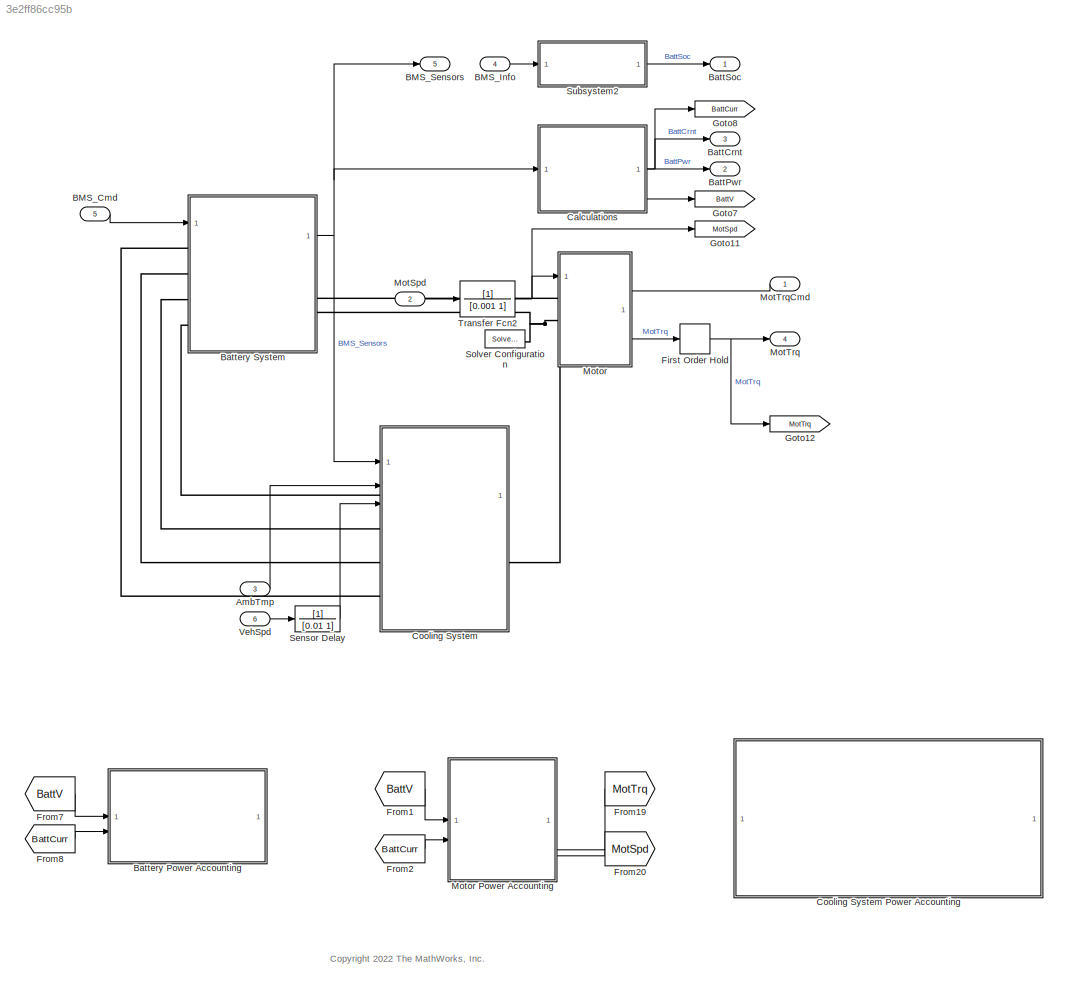
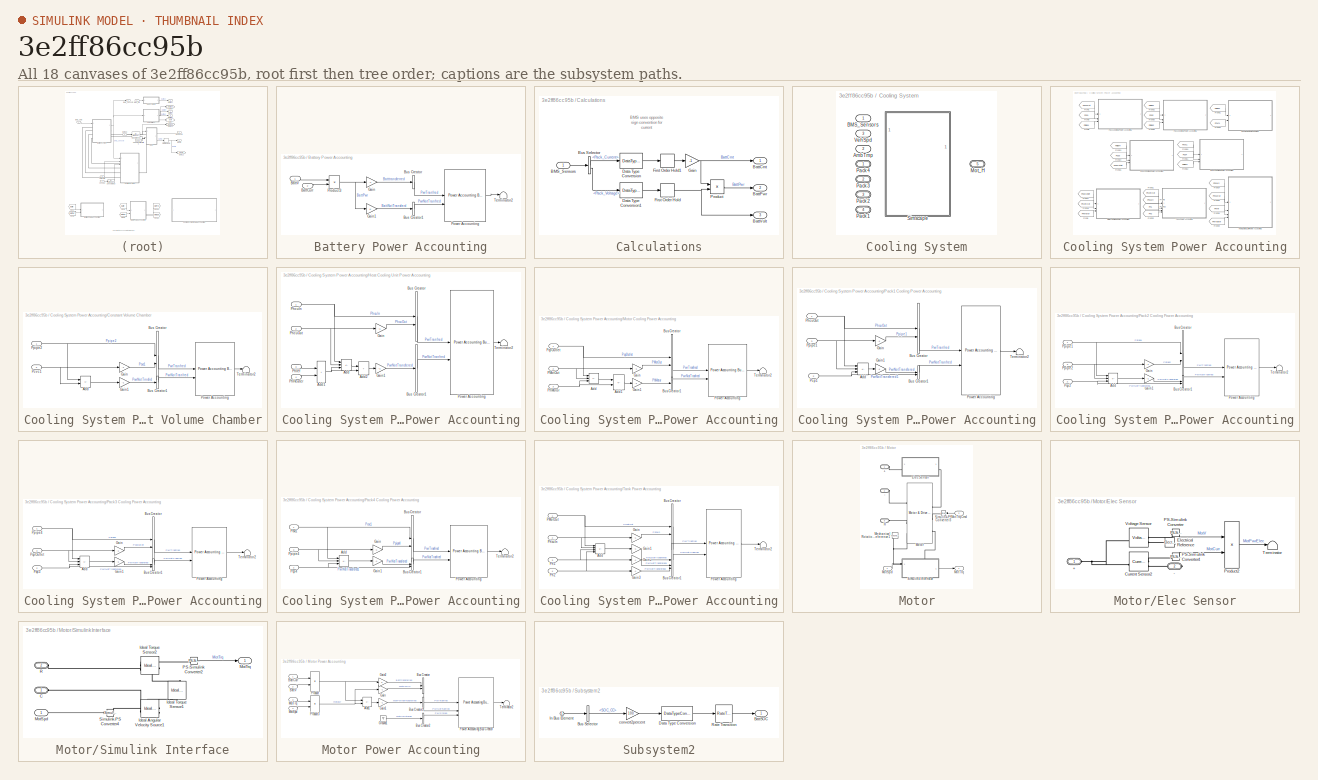
[diagram: thumbnail index - all 18 canvases of the model, root first then tree order]
MODEL slx_3e2ff86cc95b
KIND model
CONFIG AbsTol = auto
CONFIG EnableMultiTasking = off
CONFIG FixedStep = auto
CONFIG MaxStep = auto
CONFIG MinStep = auto
CONFIG RelTol = 1e-3
CONFIG SampleTimeConstraint = Unconstrained
CONFIG SolverName = VariableStepAuto
CONFIG StartTime = 0.0
CONFIG StopTime = 10.0
WORKSPACE source: mxarray member
WORKSPACE Active_Scenario_Index = 1
WORKSPACE BattCurrent = [0 0.1 0.2 0.3 0.4 0.5 0.6 0.7 0.8 0.9 1 1.1 ... (49482 elements, 24741x2)]
WORKSPACE BattSocInit = 0.75
WORKSPACE BattTempInit = 25
WORKSPACE Battery: object (value not decoded)
WORKSPACE CellType = 1
WORKSPACE EV_current = 200
WORKSPACE EV_motion = [20 4 0.8]
WORKSPACE EV_sf = 2000
WORKSPACE Fs = 0
WORKSPACE Fv = 0.0025
WORKSPACE Jcomp = 0.0227
WORKSPACE Ki = 251.3274
WORKSPACE Kisa = 346.6583
WORKSPACE Kp_d = 0.47149
WORKSPACE Kp_q = 0.52125
WORKSPACE Ksa = 85.4316
WORKSPACE Ksf = 1996.2651
WORKSPACE Ld = 0.0003752
WORKSPACE Ldq = [0.0003752 0.0004148]
WORKSPACE Lq = 0.0004148
WORKSPACE Mechanical = [0.0227 0.0025 0]
WORKSPACE Np_Module = 31
WORKSPACE Ns_Module = 24
WORKSPACE NumModules = 4
WORKSPACE OverCellVoltageLimit = 4.19999980927
WORKSPACE P = 4
WORKSPACE PolePairs = 4
WORKSPACE R_bleed = 20
WORKSPACE Rs = 0.2
WORKSPACE T_eff_bp = [0 32.1428571429 64.2857142857 96.4285714286 128.571428571 160.714285714 192.857142857 225 257.142857143 289.285714286 321.428571429 353.571428571 ... (15 elements, 1x15)]
WORKSPACE T_env = 30
WORKSPACE T_init = 303.15
WORKSPACE T_max = 450
WORKSPACE T_mtpa = [0 13.3131834767 26.6278836885 39.9456159322 53.2678926341 66.5962219318 79.9321062746 93.277041051 106.632513247 120.000000141]
WORKSPACE T_set = 20.5
WORKSPACE Tc = 0.02
WORKSPACE TempInit = 288.15
WORKSPACE TestCase = 1
WORKSPACE UnderCellVoltageLimit = 2.5
WORKSPACE ba = 3.4029
WORKSPACE cell_area = 0.101908
WORKSPACE efficiency_table = [86.7 86.7 86.7 86.7 86.7 86.7 86.7 86.7 86.7 86.7 86.7 86.7 ... (180 elements, 12x15)]
WORKSPACE h_conv = 5
WORKSPACE id_mtpa = [0 -0.114523352646 -0.457989076459 -1.03008464374 -1.83029075221 -2.85788367342 -4.11193850568 -5.59133329791 -7.29475400168 -9.22070020138]
WORKSPACE idq0 = [0 0]
WORKSPACE idq_limits = [-9.220699542 166.993501392 167.247872355]
WORKSPACE iq_mtpa = [0 18.5827440345 37.1633719111 55.7397734896 74.3098506185 92.871523015 111.422734008 129.961456105 148.485696337 166.993501356]
WORKSPACE lambda_pm = 0.1194
WORKSPACE losses_table = [0 0 0 0 0 0 0 0 0 0 0 0 ... (180 elements, 12x15)]
WORKSPACE mdot_rev = 0.01
WORKSPACE mechanical = [0.0227 0.0025 0]
WORKSPACE omega_init = 0
WORKSPACE pipe: object (value not decoded)
WORKSPACE power_max = 211000
WORKSPACE pump: object (value not decoded)
WORKSPACE radiator: object (value not decoded)
WORKSPACE t_sim = 2474
WORKSPACE tank: object (value not decoded)
WORKSPACE theta_init = 0
WORKSPACE torque_max = 450
WORKSPACE ts = 0.1
WORKSPACE valve: object (value not decoded)
WORKSPACE w_eff_bp = [0 1600 3200 4477.56 4800 6400 8000 9600 11200 12800 14400 16000]
BLOCK [Inport] AmbTmp
  Port = 3
BLOCK [Inport] BMS_Cmd
  OutDataTypeStr = Bus: BMS_Cmd
  Port = 5
BLOCK [Inport] BMS_Info
  OutDataTypeStr = Bus: BMS_Info
  Port = 4
BLOCK [Outport] BMS_Sensors
  BusOutputAsStruct = on
  OutDataTypeStr = Bus: Sensors
  Port = 5
  VectorParamsAs1DForOutWhenUnconnected = off
BLOCK [Outport] BattCrnt
  Port = 3
  VectorParamsAs1DForOutWhenUnconnected = off
BLOCK [Outport] BattPwr
  Port = 2
  VectorParamsAs1DForOutWhenUnconnected = off
BLOCK [Outport] BattSoc
  VectorParamsAs1DForOutWhenUnconnected = off
BLOCK [SubSystem] Battery Power Accounting
BLOCK [Inport] Battery Power Accounting/BattCurr
  Port = 2
BLOCK [Inport] Battery Power Accounting/BattV
BLOCK [BusCreator] Battery Power Accounting/Bus Creator
  DisplayOption = bar
  InheritFromInputs = on
  Inputs = 1
BLOCK [BusCreator] Battery Power Accounting/Bus Creator1
  DisplayOption = bar
  InheritFromInputs = on
  Inputs = 1
BLOCK [Gain] Battery Power Accounting/Gain
  Gain = -1
BLOCK [Gain] Battery Power Accounting/Gain1
BLOCK [Reference] Battery Power Accounting/Power Accounting  REF=autolibpowerinfoutils/Power Accounting Bus Creator
  SourceBlock = autolibpowerinfoutils/Power Accounting Bus Creator
  SourceType = Power Accounting Bus Creator
BLOCK [Product] Battery Power Accounting/Product3
BLOCK [Terminator] Battery Power Accounting/Terminator2
BLOCK [SubSystem] Battery System
  ReferencedSubsystem = Battery_Model
BLOCK [SubSystem] Calculations
BLOCK [Inport] Calculations/BMS_Sensors
BLOCK [Outport] Calculations/BattCrnt
BLOCK [Outport] Calculations/BattPwr
  Port = 2
BLOCK [Outport] Calculations/BattVolt
  Port = 3
BLOCK [BusSelector] Calculations/Bus Selector
  OutputSignals = Pack_Current,Pack_Voltage
BLOCK [DataTypeConversion] Calculations/Data Type Conversion
  OutDataTypeStr = double
  RndMeth = Floor
  SaturateOnIntegerOverflow = off
BLOCK [DataTypeConversion] Calculations/Data Type Conversion1
  OutDataTypeStr = double
  RndMeth = Floor
  SaturateOnIntegerOverflow = off
BLOCK [FirstOrderHold] Calculations/First Order Hold
  AllowContinuousInput = on
  ErrorTolerance = inf
BLOCK [FirstOrderHold] Calculations/First Order Hold1
  AllowContinuousInput = on
  ErrorTolerance = inf
BLOCK [Gain] Calculations/Gain
  Gain = -1
BLOCK [Product] Calculations/Product
BLOCK [SubSystem] Cooling System
  LabelModeActiveChoice = 1
  PortSchema = {"entries":[{"content":{"sides":[{"content":{"connectorIds":["In1","LConn1","LConn2","LConn3","LConn4","In2","In3"]},"type":"ConnectorPlacement.EquallySpacedRectSide","uuid":"c167541e-e4b9-49e2-9aa7-1fe3e992d52d"},{"content":{"connectorIds":["RConn1"],"side":"RIGHT"},"type":"ConnectorPlacement.EquallySpacedRectSide","uuid":"bae8285f-2b84-4cb8-84af-359175be4c5c"},{"content":{"connectorIds":[],"side...<+290ch>
  Variant = on
  VariantControl = Choice
  VariantControlMode = label
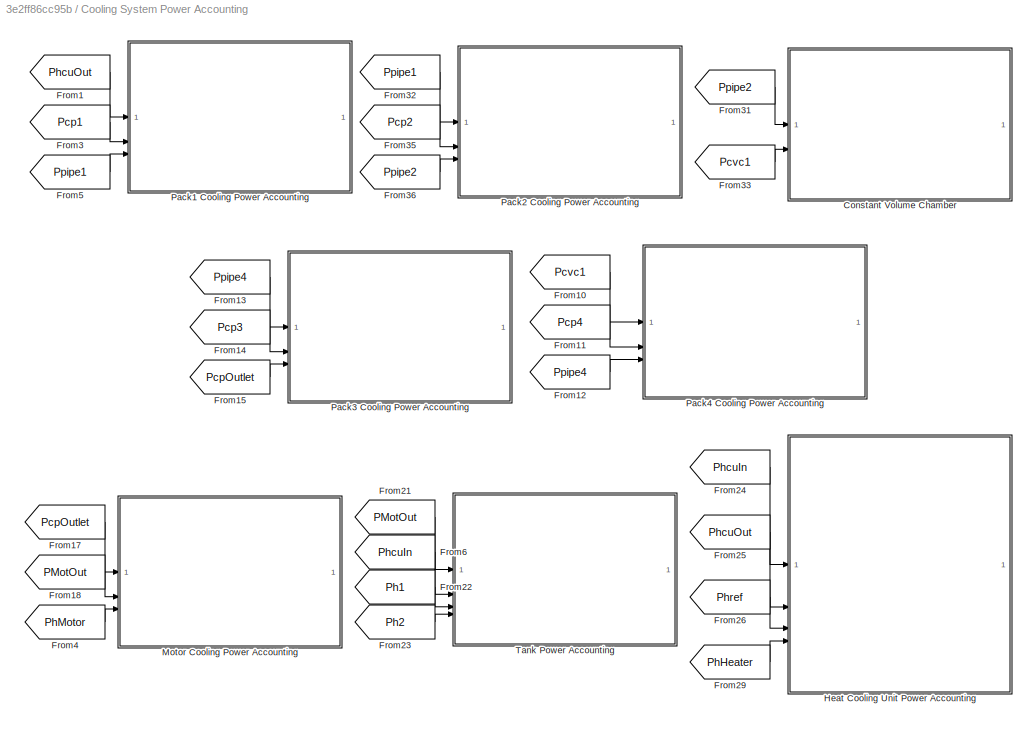
BLOCK [SubSystem] Cooling System Power Accounting
BLOCK [SubSystem] Cooling System Power Accounting/Constant Volume Chamber
BLOCK [Reference] Cooling System Power Accounting/Constant Volume Chamber/ Power Accounting  REF=autolibpowerinfoutils/Power Accounting Bus Creator
  SourceBlock = autolibpowerinfoutils/Power Accounting Bus Creator
  SourceType = Power Accounting Bus Creator
BLOCK [Sum] Cooling System Power Accounting/Constant Volume Chamber/Add
  IconShape = rectangular
  Inputs = +-
BLOCK [BusCreator] Cooling System Power Accounting/Constant Volume Chamber/Bus Creator
  DisplayOption = bar
  InheritFromInputs = on
  Inputs = 2
BLOCK [BusCreator] Cooling System Power Accounting/Constant Volume Chamber/Bus Creator1
  DisplayOption = bar
  InheritFromInputs = on
  Inputs = 1
BLOCK [Gain] Cooling System Power Accounting/Constant Volume Chamber/Gain
  Gain = -1
BLOCK [Gain] Cooling System Power Accounting/Constant Volume Chamber/Gain1
  Gain = -1
BLOCK [Inport] Cooling System Power Accounting/Constant Volume Chamber/Pcvc1
  Port = 2
BLOCK [Inport] Cooling System Power Accounting/Constant Volume Chamber/Ppipe2
BLOCK [Terminator] Cooling System Power Accounting/Constant Volume Chamber/Terminator2
BLOCK [From] Cooling System Power Accounting/From1
  GotoTag = PhcuOut
  TagVisibility = global
BLOCK [From] Cooling System Power Accounting/From10
  GotoTag = Pcvc1
  TagVisibility = global
BLOCK [From] Cooling System Power Accounting/From11
  GotoTag = Pcp4
  TagVisibility = global
BLOCK [From] Cooling System Power Accounting/From12
  GotoTag = Ppipe4
  TagVisibility = global
BLOCK [From] Cooling System Power Accounting/From13
  GotoTag = Ppipe4
  TagVisibility = global
BLOCK [From] Cooling System Power Accounting/From14
  GotoTag = Pcp3
  TagVisibility = global
BLOCK [From] Cooling System Power Accounting/From15
  GotoTag = PcpOutlet
  TagVisibility = global
BLOCK [From] Cooling System Power Accounting/From17
  GotoTag = PcpOutlet
  TagVisibility = global
BLOCK [From] Cooling System Power Accounting/From18
  GotoTag = PMotOut
  TagVisibility = global
BLOCK [From] Cooling System Power Accounting/From21
  GotoTag = PMotOut
  TagVisibility = global
BLOCK [From] Cooling System Power Accounting/From22
  GotoTag = Ph1
  TagVisibility = global
BLOCK [From] Cooling System Power Accounting/From23
  GotoTag = Ph2
  TagVisibility = global
BLOCK [From] Cooling System Power Accounting/From24
  GotoTag = PhcuIn
  TagVisibility = global
BLOCK [From] Cooling System Power Accounting/From25
  GotoTag = PhcuOut
  TagVisibility = global
BLOCK [From] Cooling System Power Accounting/From26
  GotoTag = Phref
  TagVisibility = global
BLOCK [From] Cooling System Power Accounting/From29
  GotoTag = PhHeater
  TagVisibility = global
BLOCK [From] Cooling System Power Accounting/From3
  GotoTag = Pcp1
  TagVisibility = global
BLOCK [From] Cooling System Power Accounting/From31
  GotoTag = Ppipe2
  TagVisibility = global
BLOCK [From] Cooling System Power Accounting/From32
  GotoTag = Ppipe1
  TagVisibility = global
BLOCK [From] Cooling System Power Accounting/From33
  GotoTag = Pcvc1
  TagVisibility = global
BLOCK [From] Cooling System Power Accounting/From35
  GotoTag = Pcp2
  TagVisibility = global
BLOCK [From] Cooling System Power Accounting/From36
  GotoTag = Ppipe2
  TagVisibility = global
BLOCK [From] Cooling System Power Accounting/From4
  GotoTag = PhMotor
  TagVisibility = global
BLOCK [From] Cooling System Power Accounting/From5
  GotoTag = Ppipe1
  TagVisibility = global
BLOCK [From] Cooling System Power Accounting/From6
  GotoTag = PhcuIn
  TagVisibility = global
BLOCK [SubSystem] Cooling System Power Accounting/Heat Cooling Unit Power Accounting
BLOCK [Sum] Cooling System Power Accounting/Heat Cooling Unit Power Accounting/Add
  IconShape = rectangular
  Inputs = +--
BLOCK [Sum] Cooling System Power Accounting/Heat Cooling Unit Power Accounting/Add1
  IconShape = rectangular
BLOCK [Sum] Cooling System Power Accounting/Heat Cooling Unit Power Accounting/Add2
  IconShape = rectangular
BLOCK [BusCreator] Cooling System Power Accounting/Heat Cooling Unit Power Accounting/Bus Creator
  DisplayOption = bar
  InheritFromInputs = on
  Inputs = 2
BLOCK [BusCreator] Cooling System Power Accounting/Heat Cooling Unit Power Accounting/Bus Creator1
  DisplayOption = bar
  InheritFromInputs = on
  Inputs = 1
BLOCK [Gain] Cooling System Power Accounting/Heat Cooling Unit Power Accounting/Gain
  Gain = -1
BLOCK [Gain] Cooling System Power Accounting/Heat Cooling Unit Power Accounting/Gain1
  Gain = -1
BLOCK [Inport] Cooling System Power Accounting/Heat Cooling Unit Power Accounting/PhHeater
  Port = 4
BLOCK [Inport] Cooling System Power Accounting/Heat Cooling Unit Power Accounting/PhcuIn
BLOCK [Inport] Cooling System Power Accounting/Heat Cooling Unit Power Accounting/PhcuOut
  Port = 2
BLOCK [Inport] Cooling System Power Accounting/Heat Cooling Unit Power Accounting/Phref
  Port = 3
BLOCK [Reference] Cooling System Power Accounting/Heat Cooling Unit Power Accounting/Power Accounting  REF=autolibpowerinfoutils/Power Accounting Bus Creator
  SourceBlock = autolibpowerinfoutils/Power Accounting Bus Creator
  SourceType = Power Accounting Bus Creator
BLOCK [Terminator] Cooling System Power Accounting/Heat Cooling Unit Power Accounting/Terminator2
BLOCK [SubSystem] Cooling System Power Accounting/Motor Cooling Power Accounting
BLOCK [Sum] Cooling System Power Accounting/Motor Cooling Power Accounting/Add
  IconShape = rectangular
  Inputs = +-+
BLOCK [Sum] Cooling System Power Accounting/Motor Cooling Power Accounting/Add1
  IconShape = rectangular
  Inputs = +-
BLOCK [BusCreator] Cooling System Power Accounting/Motor Cooling Power Accounting/Bus Creator
  DisplayOption = bar
  InheritFromInputs = on
  Inputs = 2
BLOCK [BusCreator] Cooling System Power Accounting/Motor Cooling Power Accounting/Bus Creator1
  DisplayOption = bar
  InheritFromInputs = on
  Inputs = 1
BLOCK [Gain] Cooling System Power Accounting/Motor Cooling Power Accounting/Gain
  Gain = -1
BLOCK [Gain] Cooling System Power Accounting/Motor Cooling Power Accounting/Gain1
  Gain = -1
BLOCK [Inport] Cooling System Power Accounting/Motor Cooling Power Accounting/PMotOut
  Port = 2
BLOCK [Inport] Cooling System Power Accounting/Motor Cooling Power Accounting/PcpOutlet
BLOCK [Inport] Cooling System Power Accounting/Motor Cooling Power Accounting/PhMotor
  Port = 3
BLOCK [Reference] Cooling System Power Accounting/Motor Cooling Power Accounting/Power Accounting  REF=autolibpowerinfoutils/Power Accounting Bus Creator
  SourceBlock = autolibpowerinfoutils/Power Accounting Bus Creator
  SourceType = Power Accounting Bus Creator
BLOCK [Terminator] Cooling System Power Accounting/Motor Cooling Power Accounting/Terminator2
BLOCK [SubSystem] Cooling System Power Accounting/Pack1 Cooling Power Accounting
BLOCK [Sum] Cooling System Power Accounting/Pack1 Cooling Power Accounting/Add
  IconShape = rectangular
  Inputs = +-+
BLOCK [BusCreator] Cooling System Power Accounting/Pack1 Cooling Power Accounting/Bus Creator
  DisplayOption = bar
  InheritFromInputs = on
  Inputs = 2
BLOCK [BusCreator] Cooling System Power Accounting/Pack1 Cooling Power Accounting/Bus Creator1
  DisplayOption = bar
  InheritFromInputs = on
  Inputs = 2
BLOCK [Gain] Cooling System Power Accounting/Pack1 Cooling Power Accounting/Gain
  Gain = -1
BLOCK [Gain] Cooling System Power Accounting/Pack1 Cooling Power Accounting/Gain1
  Gain = -1
BLOCK [Inport] Cooling System Power Accounting/Pack1 Cooling Power Accounting/Pcp1
  Port = 2
BLOCK [Inport] Cooling System Power Accounting/Pack1 Cooling Power Accounting/PhcuOut
BLOCK [Reference] Cooling System Power Accounting/Pack1 Cooling Power Accounting/Power Accounting  REF=autolibpowerinfoutils/Power Accounting Bus Creator
  SourceBlock = autolibpowerinfoutils/Power Accounting Bus Creator
  SourceType = Power Accounting Bus Creator
BLOCK [Inport] Cooling System Power Accounting/Pack1 Cooling Power Accounting/Ppipe1
  Port = 3
BLOCK [Terminator] Cooling System Power Accounting/Pack1 Cooling Power Accounting/Terminator2
BLOCK [SubSystem] Cooling System Power Accounting/Pack2 Cooling Power Accounting
BLOCK [Sum] Cooling System Power Accounting/Pack2 Cooling Power Accounting/Add
  IconShape = rectangular
  Inputs = +-+
BLOCK [BusCreator] Cooling System Power Accounting/Pack2 Cooling Power Accounting/Bus Creator
  DisplayOption = bar
  InheritFromInputs = on
  Inputs = 2
BLOCK [BusCreator] Cooling System Power Accounting/Pack2 Cooling Power Accounting/Bus Creator1
  DisplayOption = bar
  InheritFromInputs = on
  Inputs = 2
BLOCK [Gain] Cooling System Power Accounting/Pack2 Cooling Power Accounting/Gain
  Gain = -1
BLOCK [Gain] Cooling System Power Accounting/Pack2 Cooling Power Accounting/Gain1
  Gain = -1
BLOCK [Inport] Cooling System Power Accounting/Pack2 Cooling Power Accounting/Pcp2
  Port = 2
BLOCK [Reference] Cooling System Power Accounting/Pack2 Cooling Power Accounting/Power Accounting  REF=autolibpowerinfoutils/Power Accounting Bus Creator
  SourceBlock = autolibpowerinfoutils/Power Accounting Bus Creator
  SourceType = Power Accounting Bus Creator
BLOCK [Inport] Cooling System Power Accounting/Pack2 Cooling Power Accounting/Ppipe1
BLOCK [Inport] Cooling System Power Accounting/Pack2 Cooling Power Accounting/Ppipe2
  Port = 3
BLOCK [Terminator] Cooling System Power Accounting/Pack2 Cooling Power Accounting/Terminator2
BLOCK [SubSystem] Cooling System Power Accounting/Pack3 Cooling Power Accounting
BLOCK [Sum] Cooling System Power Accounting/Pack3 Cooling Power Accounting/Add
  IconShape = rectangular
  Inputs = +-+
BLOCK [BusCreator] Cooling System Power Accounting/Pack3 Cooling Power Accounting/Bus Creator
  DisplayOption = bar
  InheritFromInputs = on
  Inputs = 2
BLOCK [BusCreator] Cooling System Power Accounting/Pack3 Cooling Power Accounting/Bus Creator1
  DisplayOption = bar
  InheritFromInputs = on
  Inputs = 2
BLOCK [Gain] Cooling System Power Accounting/Pack3 Cooling Power Accounting/Gain
  Gain = -1
BLOCK [Gain] Cooling System Power Accounting/Pack3 Cooling Power Accounting/Gain1
  Gain = -1
BLOCK [Inport] Cooling System Power Accounting/Pack3 Cooling Power Accounting/Pcp3
  Port = 2
BLOCK [Inport] Cooling System Power Accounting/Pack3 Cooling Power Accounting/PcpOutlet
  Port = 3
BLOCK [Reference] Cooling System Power Accounting/Pack3 Cooling Power Accounting/Power Accounting  REF=autolibpowerinfoutils/Power Accounting Bus Creator
  SourceBlock = autolibpowerinfoutils/Power Accounting Bus Creator
  SourceType = Power Accounting Bus Creator
BLOCK [Inport] Cooling System Power Accounting/Pack3 Cooling Power Accounting/Ppipe4
BLOCK [Terminator] Cooling System Power Accounting/Pack3 Cooling Power Accounting/Terminator2
BLOCK [SubSystem] Cooling System Power Accounting/Pack4 Cooling Power Accounting
BLOCK [Sum] Cooling System Power Accounting/Pack4 Cooling Power Accounting/Add
  IconShape = rectangular
  Inputs = +-+
BLOCK [BusCreator] Cooling System Power Accounting/Pack4 Cooling Power Accounting/Bus Creator
  DisplayOption = bar
  InheritFromInputs = on
  Inputs = 2
BLOCK [BusCreator] Cooling System Power Accounting/Pack4 Cooling Power Accounting/Bus Creator1
  DisplayOption = bar
  InheritFromInputs = on
  Inputs = 2
BLOCK [Gain] Cooling System Power Accounting/Pack4 Cooling Power Accounting/Gain
  Gain = -1
BLOCK [Gain] Cooling System Power Accounting/Pack4 Cooling Power Accounting/Gain1
  Gain = -1
BLOCK [Inport] Cooling System Power Accounting/Pack4 Cooling Power Accounting/Pcp4
  Port = 2
BLOCK [Inport] Cooling System Power Accounting/Pack4 Cooling Power Accounting/Pcvc1
BLOCK [Reference] Cooling System Power Accounting/Pack4 Cooling Power Accounting/Power Accounting  REF=autolibpowerinfoutils/Power Accounting Bus Creator
  SourceBlock = autolibpowerinfoutils/Power Accounting Bus Creator
  SourceType = Power Accounting Bus Creator
BLOCK [Inport] Cooling System Power Accounting/Pack4 Cooling Power Accounting/Ppipe4
  Port = 3
BLOCK [Terminator] Cooling System Power Accounting/Pack4 Cooling Power Accounting/Terminator2
BLOCK [SubSystem] Cooling System Power Accounting/Tank Power Accounting
BLOCK [Sum] Cooling System Power Accounting/Tank Power Accounting/Add
  IconShape = rectangular
  Inputs = +---
BLOCK [BusCreator] Cooling System Power Accounting/Tank Power Accounting/Bus Creator
  DisplayOption = bar
  InheritFromInputs = on
  Inputs = 2
BLOCK [BusCreator] Cooling System Power Accounting/Tank Power Accounting/Bus Creator1
  DisplayOption = bar
  InheritFromInputs = on
  Inputs = 3
BLOCK [Gain] Cooling System Power Accounting/Tank Power Accounting/Gain
  Gain = -1
BLOCK [Gain] Cooling System Power Accounting/Tank Power Accounting/Gain1
  Gain = -1
BLOCK [Gain] Cooling System Power Accounting/Tank Power Accounting/Gain2
  Gain = -1
BLOCK [Gain] Cooling System Power Accounting/Tank Power Accounting/Gain3
  Gain = -1
BLOCK [Inport] Cooling System Power Accounting/Tank Power Accounting/PMotOut
BLOCK [Inport] Cooling System Power Accounting/Tank Power Accounting/Ph1
  Port = 3
BLOCK [Inport] Cooling System Power Accounting/Tank Power Accounting/Ph2
  Port = 4
BLOCK [Inport] Cooling System Power Accounting/Tank Power Accounting/PhcuIn
  Port = 2
BLOCK [Reference] Cooling System Power Accounting/Tank Power Accounting/Power Accounting  REF=autolibpowerinfoutils/Power Accounting Bus Creator
  SourceBlock = autolibpowerinfoutils/Power Accounting Bus Creator
  SourceType = Power Accounting Bus Creator
BLOCK [Terminator] Cooling System Power Accounting/Tank Power Accounting/Terminator2
BLOCK [Inport] Cooling System/AmbTmp
  Port = 2
BLOCK [Inport] Cooling System/BMS_Sensors
BLOCK [PMIOPort] Cooling System/Mot_H
  Port = 5
  Side = Right
BLOCK [PMIOPort] Cooling System/Pack 1
  Port = 4
  Side = Left
BLOCK [PMIOPort] Cooling System/Pack 2
  Port = 3
  Side = Left
BLOCK [PMIOPort] Cooling System/Pack 3
  Port = 2
  Side = Left
BLOCK [PMIOPort] Cooling System/Pack 4
  Side = Left
BLOCK [SubSystem] Cooling System/Simscape 
  PortSchema = {"entries":[{"content":{"sides":[{"content":{"connectorIds":["In1","LConn1","LConn2","LConn3","LConn4","In3","In2"]},"type":"ConnectorPlacement.EquallySpacedRectSide","uuid":"91345e43-9326-4851-ae22-0115818e13bd"},{"content":{"connectorIds":["RConn1"],"side":"RIGHT"},"type":"ConnectorPlacement.EquallySpacedRectSide","uuid":"8fdec940-c4a1-4379-aa74-e54f16fb1812"},{"content":{"side":"TOP"},"type":"C...<+272ch>
  ReferencedSubsystem = sscfluids_ev_battery_cooling_variant
  VariantControl = 1
BLOCK [Inport] Cooling System/VehSpd
  Port = 3
BLOCK [FirstOrderHold] First Order Hold
  AllowContinuousInput = on
  ErrorTolerance = inf
BLOCK [From] From1
  GotoTag = BattV
BLOCK [From] From19
  GotoTag = MotTrq
  NameLocation = top
  TagVisibility = global
BLOCK [From] From2
  GotoTag = BattCurr
BLOCK [From] From20
  GotoTag = MotSpd
  NameLocation = top
  TagVisibility = global
BLOCK [From] From7
  GotoTag = BattV
BLOCK [From] From8
  GotoTag = BattCurr
BLOCK [Goto] Goto11
  GotoTag = MotSpd
  TagVisibility = global
BLOCK [Goto] Goto12
  GotoTag = MotTrq
  TagVisibility = global
BLOCK [Goto] Goto7
  GotoTag = BattV
BLOCK [Goto] Goto8
  GotoTag = BattCurr
BLOCK [Inport] MotSpd
  Port = 2
BLOCK [Outport] MotTrq
  Port = 4
  VectorParamsAs1DForOutWhenUnconnected = off
BLOCK [Inport] MotTrqCmd
  NameLocation = right
BLOCK [SubSystem] Motor
  PortSchema = {"entries":[{"content":{"sides":[{"content":{"connectorIds":["LConn1","In1","LConn2","LConn3"]},"type":"ConnectorPlacement.EquallySpacedRectSide","uuid":"9597c387-ee3f-4b24-bb5e-e93595cd0799"},{"content":{"connectorIds":["In2","Out1"],"side":"RIGHT"},"type":"ConnectorPlacement.EquallySpacedRectSide","uuid":"f263f5bf-92e3-41e6-b8e0-90892aa1ca09"},{"content":{"connectorIds":[],"side":"TOP"},"type":"...<+273ch>
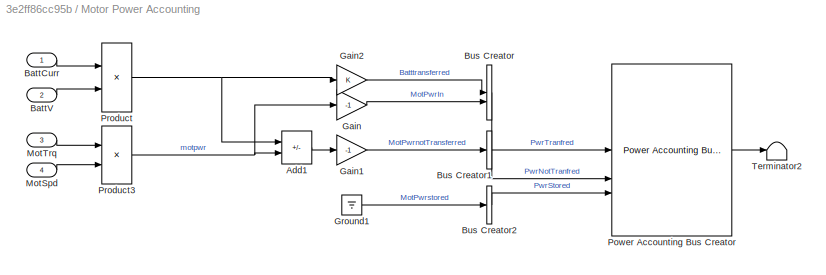
BLOCK [SubSystem] Motor Power Accounting
  PortSchema = {"entries":[{"content":{"sides":[{"content":{"connectorIds":["In1","In2"]},"type":"ConnectorPlacement.EquallySpacedRectSide","uuid":"6ec4812d-f6a8-428e-ab71-0e64a82e557b"},{"content":{"connectorIds":["In3","In4"],"side":"RIGHT"},"type":"ConnectorPlacement.EquallySpacedRectSide","uuid":"a1192fa4-ef5f-453a-86cc-222a9b7953b2"},{"content":{"connectorIds":[],"side":"TOP"},"type":"ConnectorPlacement.Equ...<+251ch>
BLOCK [Sum] Motor Power Accounting/Add1
  IconShape = rectangular
  Inputs = +-
BLOCK [Inport] Motor Power Accounting/BattCurr
BLOCK [Inport] Motor Power Accounting/BattV
  Port = 2
BLOCK [BusCreator] Motor Power Accounting/Bus Creator
  DisplayOption = bar
  InheritFromInputs = on
  Inputs = 2
BLOCK [BusCreator] Motor Power Accounting/Bus Creator1
  DisplayOption = bar
  InheritFromInputs = on
  Inputs = 1
BLOCK [BusCreator] Motor Power Accounting/Bus Creator2
  DisplayOption = bar
  InheritFromInputs = on
  Inputs = 1
BLOCK [Gain] Motor Power Accounting/Gain
  Gain = -1
BLOCK [Gain] Motor Power Accounting/Gain1
  Gain = -1
BLOCK [Gain] Motor Power Accounting/Gain2
BLOCK [Ground] Motor Power Accounting/Ground1
BLOCK [Inport] Motor Power Accounting/MotSpd
  Port = 4
BLOCK [Inport] Motor Power Accounting/MotTrq
  Port = 3
BLOCK [Reference] Motor Power Accounting/Power Accounting Bus Creator  REF=autolibpowerinfoutils/Power Accounting Bus Creator
  SourceBlock = autolibpowerinfoutils/Power Accounting Bus Creator
  SourceType = Power Accounting Bus Creator
BLOCK [Product] Motor Power Accounting/Product
BLOCK [Product] Motor Power Accounting/Product3
BLOCK [Terminator] Motor Power Accounting/Terminator2
BLOCK [PMIOPort] Motor/+
  Side = Left
BLOCK [PMIOPort] Motor/-
  Port = 2
  Side = Left
BLOCK [SubSystem] Motor/Elec Sensor
BLOCK [PMIOPort] Motor/Elec Sensor/+
  Side = Left
BLOCK [PMIOPort] Motor/Elec Sensor/-
  Port = 2
  Side = Right
BLOCK [Reference] Motor/Elec Sensor/Current Sensor2  REF=fl_lib/Electrical/Electrical Sensors/Current Sensor
  SourceBlock = fl_lib/Electrical/Electrical Sensors/Current Sensor
  SourceType = Current Sensor
BLOCK [Reference] Motor/Elec Sensor/Electrical Reference  REF=fl_lib/Electrical/Electrical Elements/Electrical Reference
  NameLocation = top
  SourceBlock = fl_lib/Electrical/Electrical Elements/Electrical Reference
  SourceType = Electrical Reference
BLOCK [Reference] Motor/Elec Sensor/PS-Simulink Converter  REF=nesl_utility_internal/PS-Simulink
Converter
  SourceBlock = nesl_utility_internal/PS-Simulink\nConverter
  SourceType = PS-Simulink\nConverter
BLOCK [Reference] Motor/Elec Sensor/PS-Simulink Converter4  REF=nesl_utility_internal/PS-Simulink
Converter
  SourceBlock = nesl_utility_internal/PS-Simulink\nConverter
  SourceType = PS-Simulink\nConverter
BLOCK [Product] Motor/Elec Sensor/Product2
BLOCK [Terminator] Motor/Elec Sensor/Terminator
BLOCK [Reference] Motor/Elec Sensor/Voltage Sensor  REF=fl_lib/Electrical/Electrical Sensors/Voltage Sensor
  NameLocation = top
  SourceBlock = fl_lib/Electrical/Electrical Sensors/Voltage Sensor
  SourceType = Voltage Sensor
BLOCK [PMIOPort] Motor/H
  Port = 3
  Side = Left
BLOCK [Reference] Motor/Mechanical Rotational Reference1  REF=fl_lib/Mechanical/Rotational Elements/Mechanical
Rotational Reference
  SourceBlock = fl_lib/Mechanical/Rotational Elements/Mechanical\nRotational Reference
  SourceType = Mechanical\nRotational Reference
BLOCK [Inport] Motor/MotSpd
BLOCK [Outport] Motor/MotTrq
  VectorParamsAs1DForOutWhenUnconnected = off
BLOCK [Inport] Motor/MotTrqCmd
  NameLocation = top
  Port = 2
BLOCK [Reference] Motor/Motor  REF=ee_lib/Electromechanical/Motor & Drive
(System Level)
  SourceBlock = ee_lib/Electromechanical/Motor & Drive\n(System Level)
  SourceType = Motor & Drive\n(System Level)
BLOCK [SubSystem] Motor/Simulink Interface
  PortSchema = {"entries":[{"content":{"sides":[{"content":{"connectorIds":["In1"]},"type":"ConnectorPlacement.EquallySpacedRectSide","uuid":"bf4125d2-d804-43ee-b309-19af55b24a20"},{"content":{"connectorIds":["Out1"],"side":"RIGHT"},"type":"ConnectorPlacement.EquallySpacedRectSide","uuid":"b387e632-ddea-4493-9ae8-5e997efec9a6"},{"content":{"connectorIds":["LConn1","LConn2"],"side":"TOP"},"type":"ConnectorPlaceme...<+257ch>
BLOCK [PMIOPort] Motor/Simulink Interface/C
  Side = Left
BLOCK [Reference] Motor/Simulink Interface/Ideal Angular Velocity Source1  REF=fl_lib/Mechanical/Mechanical Sources/Ideal Angular
Velocity Source
  SourceBlock = fl_lib/Mechanical/Mechanical Sources/Ideal Angular\nVelocity Source
  SourceType = Ideal Angular\nVelocity Source
BLOCK [Reference] Motor/Simulink Interface/Ideal Torque Sensor1  REF=fl_lib/Mechanical/Mechanical Sensors/Ideal Torque Sensor
  NameLocation = right
  SourceBlock = fl_lib/Mechanical/Mechanical Sensors/Ideal Torque Sensor
  SourceType = Ideal Torque Sensor
BLOCK [Reference] Motor/Simulink Interface/Ideal Torque Sensor2  REF=fl_lib/Mechanical/Mechanical Sensors/Ideal Torque Sensor
  NameLocation = top
  SourceBlock = fl_lib/Mechanical/Mechanical Sensors/Ideal Torque Sensor
  SourceType = Ideal Torque Sensor
BLOCK [Inport] Motor/Simulink Interface/MotSpd
BLOCK [Outport] Motor/Simulink Interface/MotTrq
BLOCK [Reference] Motor/Simulink Interface/PS-Simulink Converter2  REF=nesl_utility_internal/PS-Simulink
Converter
  SourceBlock = nesl_utility_internal/PS-Simulink\nConverter
  SourceType = PS-Simulink\nConverter
BLOCK [PMIOPort] Motor/Simulink Interface/R
  Port = 2
  Side = Left
BLOCK [Reference] Motor/Simulink Interface/Simulink-PS Converter4  REF=nesl_utility_internal/Simulink-PS
Converter
  SourceBlock = nesl_utility_internal/Simulink-PS\nConverter
  SourceType = Simulink-PS\nConverter
BLOCK [Reference] Motor/Simulink-PS Converter3  REF=nesl_utility_internal/Simulink-PS
Converter
  NameLocation = top
  SourceBlock = nesl_utility_internal/Simulink-PS\nConverter
  SourceType = Simulink-PS\nConverter
BLOCK [TransferFcn] Sensor Delay
  Denominator = [0.01 1]
BLOCK [Reference] Solver Configuration  REF=nesl_utility_internal/Solver
Configuration
  SourceBlock = nesl_utility_internal/Solver\nConfiguration
  SourceType = Solver\nConfiguration
BLOCK [SubSystem] Subsystem2
BLOCK [Outport] Subsystem2/BattSOC
BLOCK [BusSelector] Subsystem2/Bus Selector
  OutputSignals = SOC_CC
BLOCK [DataTypeConversion] Subsystem2/Data Type Conversion
  RndMeth = Floor
  SaturateOnIntegerOverflow = off
BLOCK [Inport] Subsystem2/In Bus Element
BLOCK [RateTransition] Subsystem2/Rate Transition
  Commented = through
BLOCK [Gain] Subsystem2/convert2percent
  Gain = 100
BLOCK [TransferFcn] Transfer Fcn2
  Denominator = [0.001 1]
BLOCK [Inport] VehSpd
  Port = 6
ANNOTATION (root): <copyright redacted>
ANNOTATION Calculations: BMS uses opposite sign convention for current
LINE AmbTmp:1 -> Cooling System:2
LINE BMS_Cmd:1 -> Battery System:1
LINE BMS_Info:1 -> Subsystem2:1
LINE Battery Power Accounting/BattCurr:1 -> Battery Power Accounting/Product3:2
LINE Battery Power Accounting/BattV:1 -> Battery Power Accounting/Product3:1
LINE Battery Power Accounting/Bus Creator1:1 -> Battery Power Accounting/Power Accounting:2
LINE Battery Power Accounting/Bus Creator:1 -> Battery Power Accounting/Power Accounting:1
LINE Battery Power Accounting/Gain1:1 -> Battery Power Accounting/Bus Creator1:1
LINE Battery Power Accounting/Gain:1 -> Battery Power Accounting/Bus Creator:1
LINE Battery Power Accounting/Power Accounting:1 -> Battery Power Accounting/Terminator2:1
NET Battery Power Accounting/Product3:1 -> Battery Power Accounting/Gain1:1, Battery Power Accounting/Gain:1
NET Battery System:1 -> BMS_Sensors:1, Calculations:1, Cooling System:1
LINE Calculations/BMS_Sensors:1 -> Calculations/Bus Selector:1
LINE Calculations/Bus Selector:1 -> Calculations/Data Type Conversion:1
LINE Calculations/Bus Selector:2 -> Calculations/Data Type Conversion1:1
LINE Calculations/Data Type Conversion1:1 -> Calculations/First Order Hold:1
LINE Calculations/Data Type Conversion:1 -> Calculations/First Order Hold1:1
LINE Calculations/First Order Hold1:1 -> Calculations/Gain:1
NET Calculations/First Order Hold:1 -> Calculations/BattVolt:1, Calculations/Product:2
NET Calculations/Gain:1 -> Calculations/BattCrnt:1, Calculations/Product:1
LINE Calculations/Product:1 -> Calculations/BattPwr:1
NET Calculations:1 -> BattCrnt:1, Goto8:1
LINE Calculations:2 -> BattPwr:1
LINE Calculations:3 -> Goto7:1
LINE Cooling System Power Accounting/Constant Volume Chamber/ Power Accounting:1 -> Cooling System Power Accounting/Constant Volume Chamber/Terminator2:1
LINE Cooling System Power Accounting/Constant Volume Chamber/Add:1 -> Cooling System Power Accounting/Constant Volume Chamber/Gain1:1
LINE Cooling System Power Accounting/Constant Volume Chamber/Bus Creator1:1 -> Cooling System Power Accounting/Constant Volume Chamber/ Power Accounting:2
LINE Cooling System Power Accounting/Constant Volume Chamber/Bus Creator:1 -> Cooling System Power Accounting/Constant Volume Chamber/ Power Accounting:1
LINE Cooling System Power Accounting/Constant Volume Chamber/Gain1:1 -> Cooling System Power Accounting/Constant Volume Chamber/Bus Creator1:1
LINE Cooling System Power Accounting/Constant Volume Chamber/Gain:1 -> Cooling System Power Accounting/Constant Volume Chamber/Bus Creator:2
NET Cooling System Power Accounting/Constant Volume Chamber/Pcvc1:1 -> Cooling System Power Accounting/Constant Volume Chamber/Add:2, Cooling System Power Accounting/Constant Volume Chamber/Gain:1
NET Cooling System Power Accounting/Constant Volume Chamber/Ppipe2:1 -> Cooling System Power Accounting/Constant Volume Chamber/Add:1, Cooling System Power Accounting/Constant Volume Chamber/Bus Creator:1
LINE Cooling System Power Accounting/From10:1 -> Cooling System Power Accounting/Pack4 Cooling Power Accounting:1
LINE Cooling System Power Accounting/From11:1 -> Cooling System Power Accounting/Pack4 Cooling Power Accounting:2
LINE Cooling System Power Accounting/From12:1 -> Cooling System Power Accounting/Pack4 Cooling Power Accounting:3
LINE Cooling System Power Accounting/From13:1 -> Cooling System Power Accounting/Pack3 Cooling Power Accounting:1
LINE Cooling System Power Accounting/From14:1 -> Cooling System Power Accounting/Pack3 Cooling Power Accounting:2
LINE Cooling System Power Accounting/From15:1 -> Cooling System Power Accounting/Pack3 Cooling Power Accounting:3
LINE Cooling System Power Accounting/From17:1 -> Cooling System Power Accounting/Motor Cooling Power Accounting:1
LINE Cooling System Power Accounting/From18:1 -> Cooling System Power Accounting/Motor Cooling Power Accounting:2
LINE Cooling System Power Accounting/From1:1 -> Cooling System Power Accounting/Pack1 Cooling Power Accounting:1
LINE Cooling System Power Accounting/From21:1 -> Cooling System Power Accounting/Tank Power Accounting:1
LINE Cooling System Power Accounting/From22:1 -> Cooling System Power Accounting/Tank Power Accounting:3
LINE Cooling System Power Accounting/From23:1 -> Cooling System Power Accounting/Tank Power Accounting:4
LINE Cooling System Power Accounting/From24:1 -> Cooling System Power Accounting/Heat Cooling Unit Power Accounting:1
LINE Cooling System Power Accounting/From25:1 -> Cooling System Power Accounting/Heat Cooling Unit Power Accounting:2
LINE Cooling System Power Accounting/From26:1 -> Cooling System Power Accounting/Heat Cooling Unit Power Accounting:3
LINE Cooling System Power Accounting/From29:1 -> Cooling System Power Accounting/Heat Cooling Unit Power Accounting:4
LINE Cooling System Power Accounting/From31:1 -> Cooling System Power Accounting/Constant Volume Chamber:1
LINE Cooling System Power Accounting/From32:1 -> Cooling System Power Accounting/Pack2 Cooling Power Accounting:1
LINE Cooling System Power Accounting/From33:1 -> Cooling System Power Accounting/Constant Volume Chamber:2
LINE Cooling System Power Accounting/From35:1 -> Cooling System Power Accounting/Pack2 Cooling Power Accounting:2
LINE Cooling System Power Accounting/From36:1 -> Cooling System Power Accounting/Pack2 Cooling Power Accounting:3
LINE Cooling System Power Accounting/From3:1 -> Cooling System Power Accounting/Pack1 Cooling Power Accounting:2
LINE Cooling System Power Accounting/From4:1 -> Cooling System Power Accounting/Motor Cooling Power Accounting:3
LINE Cooling System Power Accounting/From5:1 -> Cooling System Power Accounting/Pack1 Cooling Power Accounting:3
LINE Cooling System Power Accounting/From6:1 -> Cooling System Power Accounting/Tank Power Accounting:2
NET Cooling System Power Accounting/Heat Cooling Unit Power Accounting/Add1:1 -> Cooling System Power Accounting/Heat Cooling Unit Power Accounting/Add2:2, Cooling System Power Accounting/Heat Cooling Unit Power Accounting/Add:3
LINE Cooling System Power Accounting/Heat Cooling Unit Power Accounting/Add2:1 -> Cooling System Power Accounting/Heat Cooling Unit Power Accounting/Gain1:1
LINE Cooling System Power Accounting/Heat Cooling Unit Power Accounting/Add:1 -> Cooling System Power Accounting/Heat Cooling Unit Power Accounting/Add2:1
LINE Cooling System Power Accounting/Heat Cooling Unit Power Accounting/Bus Creator1:1 -> Cooling System Power Accounting/Heat Cooling Unit Power Accounting/Power Accounting:2
LINE Cooling System Power Accounting/Heat Cooling Unit Power Accounting/Bus Creator:1 -> Cooling System Power Accounting/Heat Cooling Unit Power Accounting/Power Accounting:1
LINE Cooling System Power Accounting/Heat Cooling Unit Power Accounting/Gain1:1 -> Cooling System Power Accounting/Heat Cooling Unit Power Accounting/Bus Creator1:1
LINE Cooling System Power Accounting/Heat Cooling Unit Power Accounting/Gain:1 -> Cooling System Power Accounting/Heat Cooling Unit Power Accounting/Bus Creator:2
LINE Cooling System Power Accounting/Heat Cooling Unit Power Accounting/PhHeater:1 -> Cooling System Power Accounting/Heat Cooling Unit Power Accounting/Add1:2
NET Cooling System Power Accounting/Heat Cooling Unit Power Accounting/PhcuIn:1 -> Cooling System Power Accounting/Heat Cooling Unit Power Accounting/Add:1, Cooling System Power Accounting/Heat Cooling Unit Power Accounting/Bus Creator:1
NET Cooling System Power Accounting/Heat Cooling Unit Power Accounting/PhcuOut:1 -> Cooling System Power Accounting/Heat Cooling Unit Power Accounting/Add:2, Cooling System Power Accounting/Heat Cooling Unit Power Accounting/Gain:1
LINE Cooling System Power Accounting/Heat Cooling Unit Power Accounting/Phref:1 -> Cooling System Power Accounting/Heat Cooling Unit Power Accounting/Add1:1
LINE Cooling System Power Accounting/Heat Cooling Unit Power Accounting/Power Accounting:1 -> Cooling System Power Accounting/Heat Cooling Unit Power Accounting/Terminator2:1
LINE Cooling System Power Accounting/Motor Cooling Power Accounting/Add1:1 -> Cooling System Power Accounting/Motor Cooling Power Accounting/Gain1:1
LINE Cooling System Power Accounting/Motor Cooling Power Accounting/Add:1 -> Cooling System Power Accounting/Motor Cooling Power Accounting/Add1:1
LINE Cooling System Power Accounting/Motor Cooling Power Accounting/Bus Creator1:1 -> Cooling System Power Accounting/Motor Cooling Power Accounting/Power Accounting:2
LINE Cooling System Power Accounting/Motor Cooling Power Accounting/Bus Creator:1 -> Cooling System Power Accounting/Motor Cooling Power Accounting/Power Accounting:1
LINE Cooling System Power Accounting/Motor Cooling Power Accounting/Gain1:1 -> Cooling System Power Accounting/Motor Cooling Power Accounting/Bus Creator1:1
LINE Cooling System Power Accounting/Motor Cooling Power Accounting/Gain:1 -> Cooling System Power Accounting/Motor Cooling Power Accounting/Bus Creator:2
NET Cooling System Power Accounting/Motor Cooling Power Accounting/PMotOut:1 -> Cooling System Power Accounting/Motor Cooling Power Accounting/Add:2, Cooling System Power Accounting/Motor Cooling Power Accounting/Gain:1
NET Cooling System Power Accounting/Motor Cooling Power Accounting/PcpOutlet:1 -> Cooling System Power Accounting/Motor Cooling Power Accounting/Add:1, Cooling System Power Accounting/Motor Cooling Power Accounting/Bus Creator:1
NET Cooling System Power Accounting/Motor Cooling Power Accounting/PhMotor:1 -> Cooling System Power Accounting/Motor Cooling Power Accounting/Add1:2, Cooling System Power Accounting/Motor Cooling Power Accounting/Add:3
LINE Cooling System Power Accounting/Motor Cooling Power Accounting/Power Accounting:1 -> Cooling System Power Accounting/Motor Cooling Power Accounting/Terminator2:1
LINE Cooling System Power Accounting/Pack1 Cooling Power Accounting/Add:1 -> Cooling System Power Accounting/Pack1 Cooling Power Accounting/Gain1:1
LINE Cooling System Power Accounting/Pack1 Cooling Power Accounting/Bus Creator1:1 -> Cooling System Power Accounting/Pack1 Cooling Power Accounting/Power Accounting:2
LINE Cooling System Power Accounting/Pack1 Cooling Power Accounting/Bus Creator:1 -> Cooling System Power Accounting/Pack1 Cooling Power Accounting/Power Accounting:1
LINE Cooling System Power Accounting/Pack1 Cooling Power Accounting/Gain1:1 -> Cooling System Power Accounting/Pack1 Cooling Power Accounting/Bus Creator1:1
LINE Cooling System Power Accounting/Pack1 Cooling Power Accounting/Gain:1 -> Cooling System Power Accounting/Pack1 Cooling Power Accounting/Bus Creator:2
NET Cooling System Power Accounting/Pack1 Cooling Power Accounting/Pcp1:1 -> Cooling System Power Accounting/Pack1 Cooling Power Accounting/Add:3, Cooling System Power Accounting/Pack1 Cooling Power Accounting/Bus Creator1:2
NET Cooling System Power Accounting/Pack1 Cooling Power Accounting/PhcuOut:1 -> Cooling System Power Accounting/Pack1 Cooling Power Accounting/Add:1, Cooling System Power Accounting/Pack1 Cooling Power Accounting/Bus Creator:1
LINE Cooling System Power Accounting/Pack1 Cooling Power Accounting/Power Accounting:1 -> Cooling System Power Accounting/Pack1 Cooling Power Accounting/Terminator2:1
NET Cooling System Power Accounting/Pack1 Cooling Power Accounting/Ppipe1:1 -> Cooling System Power Accounting/Pack1 Cooling Power Accounting/Add:2, Cooling System Power Accounting/Pack1 Cooling Power Accounting/Gain:1
LINE Cooling System Power Accounting/Pack2 Cooling Power Accounting/Add:1 -> Cooling System Power Accounting/Pack2 Cooling Power Accounting/Gain1:1
LINE Cooling System Power Accounting/Pack2 Cooling Power Accounting/Bus Creator1:1 -> Cooling System Power Accounting/Pack2 Cooling Power Accounting/Power Accounting:2
LINE Cooling System Power Accounting/Pack2 Cooling Power Accounting/Bus Creator:1 -> Cooling System Power Accounting/Pack2 Cooling Power Accounting/Power Accounting:1
LINE Cooling System Power Accounting/Pack2 Cooling Power Accounting/Gain1:1 -> Cooling System Power Accounting/Pack2 Cooling Power Accounting/Bus Creator1:1
LINE Cooling System Power Accounting/Pack2 Cooling Power Accounting/Gain:1 -> Cooling System Power Accounting/Pack2 Cooling Power Accounting/Bus Creator:2
NET Cooling System Power Accounting/Pack2 Cooling Power Accounting/Pcp2:1 -> Cooling System Power Accounting/Pack2 Cooling Power Accounting/Add:3, Cooling System Power Accounting/Pack2 Cooling Power Accounting/Bus Creator1:2
LINE Cooling System Power Accounting/Pack2 Cooling Power Accounting/Power Accounting:1 -> Cooling System Power Accounting/Pack2 Cooling Power Accounting/Terminator2:1
NET Cooling System Power Accounting/Pack2 Cooling Power Accounting/Ppipe1:1 -> Cooling System Power Accounting/Pack2 Cooling Power Accounting/Add:1, Cooling System Power Accounting/Pack2 Cooling Power Accounting/Bus Creator:1
NET Cooling System Power Accounting/Pack2 Cooling Power Accounting/Ppipe2:1 -> Cooling System Power Accounting/Pack2 Cooling Power Accounting/Add:2, Cooling System Power Accounting/Pack2 Cooling Power Accounting/Gain:1
LINE Cooling System Power Accounting/Pack3 Cooling Power Accounting/Add:1 -> Cooling System Power Accounting/Pack3 Cooling Power Accounting/Gain1:1
LINE Cooling System Power Accounting/Pack3 Cooling Power Accounting/Bus Creator1:1 -> Cooling System Power Accounting/Pack3 Cooling Power Accounting/Power Accounting:2
LINE Cooling System Power Accounting/Pack3 Cooling Power Accounting/Bus Creator:1 -> Cooling System Power Accounting/Pack3 Cooling Power Accounting/Power Accounting:1
LINE Cooling System Power Accounting/Pack3 Cooling Power Accounting/Gain1:1 -> Cooling System Power Accounting/Pack3 Cooling Power Accounting/Bus Creator1:1
LINE Cooling System Power Accounting/Pack3 Cooling Power Accounting/Gain:1 -> Cooling System Power Accounting/Pack3 Cooling Power Accounting/Bus Creator:2
NET Cooling System Power Accounting/Pack3 Cooling Power Accounting/Pcp3:1 -> Cooling System Power Accounting/Pack3 Cooling Power Accounting/Add:3, Cooling System Power Accounting/Pack3 Cooling Power Accounting/Bus Creator1:2
NET Cooling System Power Accounting/Pack3 Cooling Power Accounting/PcpOutlet:1 -> Cooling System Power Accounting/Pack3 Cooling Power Accounting/Add:2, Cooling System Power Accounting/Pack3 Cooling Power Accounting/Gain:1
LINE Cooling System Power Accounting/Pack3 Cooling Power Accounting/Power Accounting:1 -> Cooling System Power Accounting/Pack3 Cooling Power Accounting/Terminator2:1
NET Cooling System Power Accounting/Pack3 Cooling Power Accounting/Ppipe4:1 -> Cooling System Power Accounting/Pack3 Cooling Power Accounting/Add:1, Cooling System Power Accounting/Pack3 Cooling Power Accounting/Bus Creator:1
LINE Cooling System Power Accounting/Pack4 Cooling Power Accounting/Add:1 -> Cooling System Power Accounting/Pack4 Cooling Power Accounting/Gain1:1
LINE Cooling System Power Accounting/Pack4 Cooling Power Accounting/Bus Creator1:1 -> Cooling System Power Accounting/Pack4 Cooling Power Accounting/Power Accounting:2
LINE Cooling System Power Accounting/Pack4 Cooling Power Accounting/Bus Creator:1 -> Cooling System Power Accounting/Pack4 Cooling Power Accounting/Power Accounting:1
LINE Cooling System Power Accounting/Pack4 Cooling Power Accounting/Gain1:1 -> Cooling System Power Accounting/Pack4 Cooling Power Accounting/Bus Creator1:1
LINE Cooling System Power Accounting/Pack4 Cooling Power Accounting/Gain:1 -> Cooling System Power Accounting/Pack4 Cooling Power Accounting/Bus Creator:2
NET Cooling System Power Accounting/Pack4 Cooling Power Accounting/Pcp4:1 -> Cooling System Power Accounting/Pack4 Cooling Power Accounting/Add:3, Cooling System Power Accounting/Pack4 Cooling Power Accounting/Bus Creator1:2
NET Cooling System Power Accounting/Pack4 Cooling Power Accounting/Pcvc1:1 -> Cooling System Power Accounting/Pack4 Cooling Power Accounting/Add:1, Cooling System Power Accounting/Pack4 Cooling Power Accounting/Bus Creator:1
LINE Cooling System Power Accounting/Pack4 Cooling Power Accounting/Power Accounting:1 -> Cooling System Power Accounting/Pack4 Cooling Power Accounting/Terminator2:1
NET Cooling System Power Accounting/Pack4 Cooling Power Accounting/Ppipe4:1 -> Cooling System Power Accounting/Pack4 Cooling Power Accounting/Add:2, Cooling System Power Accounting/Pack4 Cooling Power Accounting/Gain:1
LINE Cooling System Power Accounting/Tank Power Accounting/Add:1 -> Cooling System Power Accounting/Tank Power Accounting/Gain1:1
LINE Cooling System Power Accounting/Tank Power Accounting/Bus Creator1:1 -> Cooling System Power Accounting/Tank Power Accounting/Power Accounting:2
LINE Cooling System Power Accounting/Tank Power Accounting/Bus Creator:1 -> Cooling System Power Accounting/Tank Power Accounting/Power Accounting:1
LINE Cooling System Power Accounting/Tank Power Accounting/Gain1:1 -> Cooling System Power Accounting/Tank Power Accounting/Bus Creator1:1
LINE Cooling System Power Accounting/Tank Power Accounting/Gain2:1 -> Cooling System Power Accounting/Tank Power Accounting/Bus Creator1:2
LINE Cooling System Power Accounting/Tank Power Accounting/Gain3:1 -> Cooling System Power Accounting/Tank Power Accounting/Bus Creator1:3
LINE Cooling System Power Accounting/Tank Power Accounting/Gain:1 -> Cooling System Power Accounting/Tank Power Accounting/Bus Creator:2
NET Cooling System Power Accounting/Tank Power Accounting/PMotOut:1 -> Cooling System Power Accounting/Tank Power Accounting/Add:1, Cooling System Power Accounting/Tank Power Accounting/Bus Creator:1
NET Cooling System Power Accounting/Tank Power Accounting/Ph1:1 -> Cooling System Power Accounting/Tank Power Accounting/Add:3, Cooling System Power Accounting/Tank Power Accounting/Gain2:1
NET Cooling System Power Accounting/Tank Power Accounting/Ph2:1 -> Cooling System Power Accounting/Tank Power Accounting/Add:4, Cooling System Power Accounting/Tank Power Accounting/Gain3:1
NET Cooling System Power Accounting/Tank Power Accounting/PhcuIn:1 -> Cooling System Power Accounting/Tank Power Accounting/Add:2, Cooling System Power Accounting/Tank Power Accounting/Gain:1
LINE Cooling System Power Accounting/Tank Power Accounting/Power Accounting:1 -> Cooling System Power Accounting/Tank Power Accounting/Terminator2:1
NET First Order Hold:1 -> Goto12:1, MotTrq:1
LINE From19:1 -> Motor Power Accounting:3
LINE From1:1 -> Motor Power Accounting:1
LINE From20:1 -> Motor Power Accounting:4
LINE From2:1 -> Motor Power Accounting:2
LINE From7:1 -> Battery Power Accounting:1
LINE From8:1 -> Battery Power Accounting:2
LINE MotSpd:1 -> Transfer Fcn2:1
LINE MotTrqCmd:1 -> Motor:2
LINE Motor Power Accounting/Add1:1 -> Motor Power Accounting/Gain1:1
LINE Motor Power Accounting/BattCurr:1 -> Motor Power Accounting/Product:1
LINE Motor Power Accounting/BattV:1 -> Motor Power Accounting/Product:2
LINE Motor Power Accounting/Bus Creator1:1 -> Motor Power Accounting/Power Accounting Bus Creator:2
LINE Motor Power Accounting/Bus Creator2:1 -> Motor Power Accounting/Power Accounting Bus Creator:3
LINE Motor Power Accounting/Bus Creator:1 -> Motor Power Accounting/Power Accounting Bus Creator:1
LINE Motor Power Accounting/Gain1:1 -> Motor Power Accounting/Bus Creator1:1
LINE Motor Power Accounting/Gain2:1 -> Motor Power Accounting/Bus Creator:1
LINE Motor Power Accounting/Gain:1 -> Motor Power Accounting/Bus Creator:2
LINE Motor Power Accounting/Ground1:1 -> Motor Power Accounting/Bus Creator2:1
LINE Motor Power Accounting/MotSpd:1 -> Motor Power Accounting/Product3:2
LINE Motor Power Accounting/MotTrq:1 -> Motor Power Accounting/Product3:1
LINE Motor Power Accounting/Power Accounting Bus Creator:1 -> Motor Power Accounting/Terminator2:1
NET Motor Power Accounting/Product3:1 -> Motor Power Accounting/Add1:2, Motor Power Accounting/Gain:1
NET Motor Power Accounting/Product:1 -> Motor Power Accounting/Add1:1, Motor Power Accounting/Gain2:1
LINE Motor/Elec Sensor/PS-Simulink Converter4:1 -> Motor/Elec Sensor/Product2:2
LINE Motor/Elec Sensor/PS-Simulink Converter:1 -> Motor/Elec Sensor/Product2:1
LINE Motor/Elec Sensor/Product2:1 -> Motor/Elec Sensor/Terminator:1
LINE Motor/MotSpd:1 -> Motor/Simulink Interface:1
LINE Motor/MotTrqCmd:1 -> Motor/Simulink-PS Converter3:1
LINE Motor/Simulink Interface/MotSpd:1 -> Motor/Simulink Interface/Simulink-PS Converter4:1
LINE Motor/Simulink Interface/PS-Simulink Converter2:1 -> Motor/Simulink Interface/MotTrq:1
LINE Motor/Simulink Interface:1 -> Motor/MotTrq:1
LINE Motor:1 -> First Order Hold:1
LINE Sensor Delay:1 -> Cooling System:3
LINE Subsystem2/Bus Selector:1 -> Subsystem2/convert2percent:1
LINE Subsystem2/Data Type Conversion:1 -> Subsystem2/Rate Transition:1
LINE Subsystem2/In Bus Element:1 -> Subsystem2/Bus Selector:1
LINE Subsystem2/Rate Transition:1 -> Subsystem2/BattSOC:1
LINE Subsystem2/convert2percent:1 -> Subsystem2/Data Type Conversion:1
LINE Subsystem2:1 -> BattSoc:1
NET Transfer Fcn2:1 -> Goto11:1, Motor:1
LINE VehSpd:1 -> Sensor Delay:1
PLINE Battery System:LConn1 -- Cooling System:LConn4
PLINE Battery System:LConn2 -- Cooling System:LConn3
PLINE Battery System:LConn3 -- Cooling System:LConn2
PLINE Battery System:LConn4 -- Cooling System:LConn1
PLINE Battery System:RConn1 -- Motor:LConn1
PNET net1: Battery System:RConn2 -- Motor:LConn2 -- Solver Configuration:RConn1
PLINE Cooling System:RConn1 -- Motor:LConn3
PLINE Motor/+:RConn1 -- Motor/Elec Sensor:LConn1
PLINE Motor/-:RConn1 -- Motor/Motor:RConn1
PNET net2: Motor/Elec Sensor/+:RConn1 -- Motor/Elec Sensor/Current Sensor2:LConn1 -- Motor/Elec Sensor/Voltage Sensor:LConn1
PLINE Motor/Elec Sensor/-:RConn1 -- Motor/Elec Sensor/Current Sensor2:RConn2
PLINE Motor/Elec Sensor/Current Sensor2:RConn1 -- Motor/Elec Sensor/PS-Simulink Converter4:LConn1
PLINE Motor/Elec Sensor/Electrical Reference:LConn1 -- Motor/Elec Sensor/Voltage Sensor:RConn2
PLINE Motor/Elec Sensor/PS-Simulink Converter:LConn1 -- Motor/Elec Sensor/Voltage Sensor:RConn1
PLINE Motor/Elec Sensor:RConn1 -- Motor/Motor:LConn1
PLINE Motor/H:RConn1 -- Motor/Motor:RConn3
PNET net3: Motor/Mechanical Rotational Reference1:LConn1 -- Motor/Motor:RConn4 -- Motor/Simulink Interface:LConn1
PLINE Motor/Motor:LConn2 -- Motor/Simulink-PS Converter3:RConn1
PLINE Motor/Motor:LConn3 -- Motor/Simulink Interface:LConn2
PLINE Motor/Simulink Interface/C:RConn1 -- Motor/Simulink Interface/Ideal Angular Velocity Source1:RConn2
PLINE Motor/Simulink Interface/Ideal Angular Velocity Source1:LConn1 -- Motor/Simulink Interface/Ideal Torque Sensor1:RConn1
PLINE Motor/Simulink Interface/Ideal Angular Velocity Source1:RConn1 -- Motor/Simulink Interface/Simulink-PS Converter4:RConn1
PLINE Motor/Simulink Interface/Ideal Torque Sensor1:LConn1 -- Motor/Simulink Interface/Ideal Torque Sensor2:RConn1
PLINE Motor/Simulink Interface/Ideal Torque Sensor2:LConn1 -- Motor/Simulink Interface/R:RConn1
PLINE Motor/Simulink Interface/Ideal Torque Sensor2:RConn2 -- Motor/Simulink Interface/PS-Simulink Converter2:LConn1
note: NET lines group one-source signal fan-out (src -> all destinations, sorted); 1:1 wires keep LINE; PNET lines group multi-terminal physical nets as a canonical sorted terminal list (undirected conserving connections); 2-terminal nets keep the pairwise PLINE form
